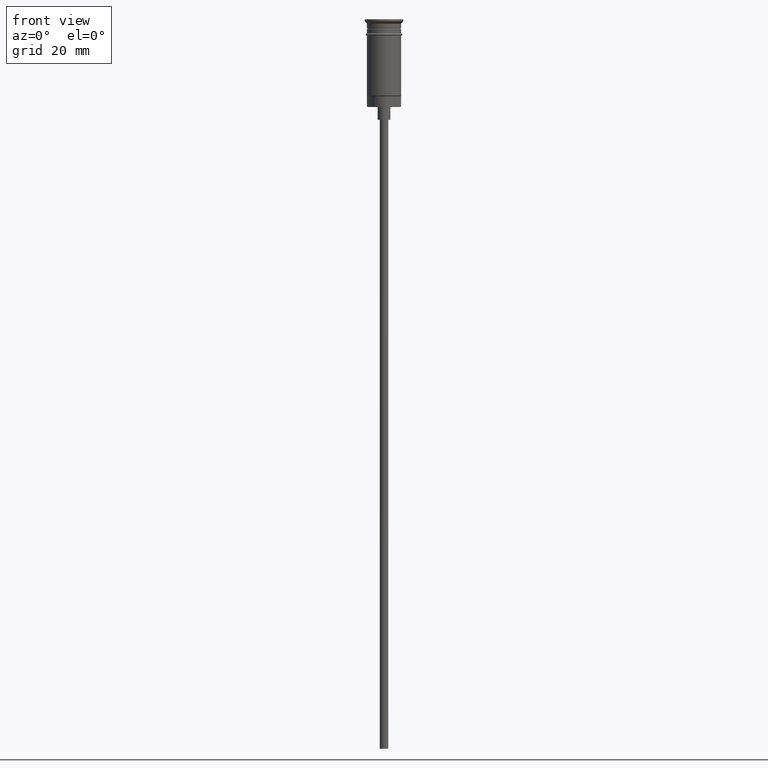
[diagram: clean part render]
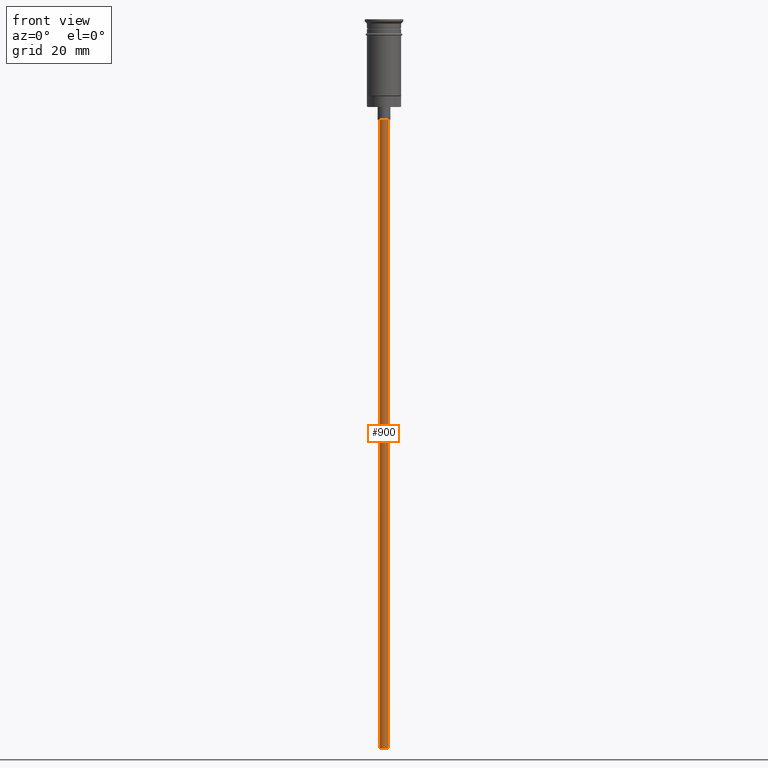
[diagram: same view with one face highlighted and labeled with its STEP entity id]
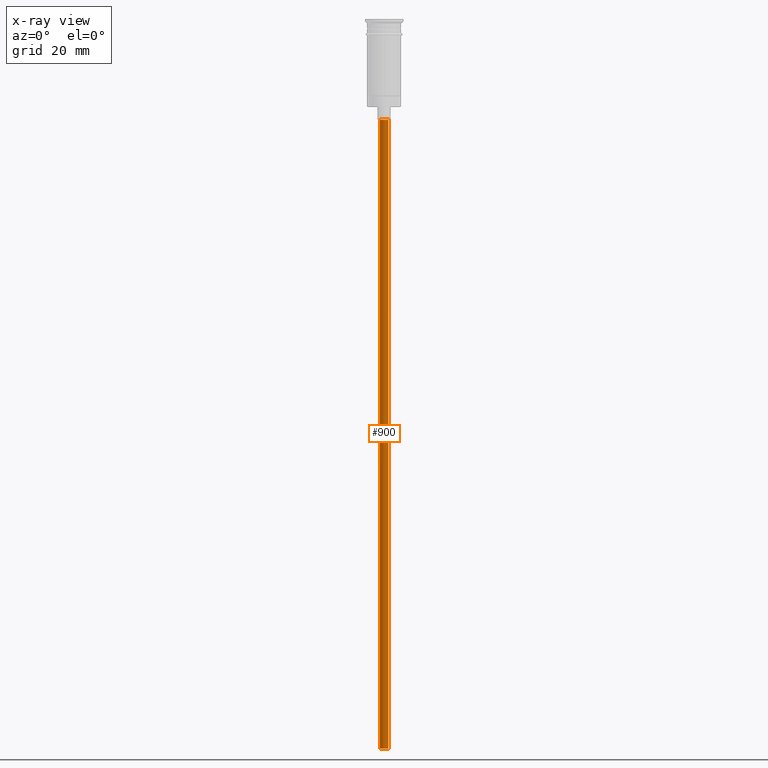
[diagram: x-ray of the same camera — body ghosted, the highlighted face saturated]
A machine part, front view. The second image highlights one B-rep face of the part: STEP entity #900.
The next image is the same camera in x-ray: the body ghosted, the highlighted face saturated — about 0% of this face is hidden behind the body in this view.
In plain terms, the highlighted cylindrical surface (edge-blend (fillet) strip) has radius 1 mm, axis along (-0, -0, 1).
Its self-contained STEP definition (entity closure, byte-faithful):
#11 = VERTEX_POINT ( 'NONE', #1183 ) ;
#14 = EDGE_LOOP ( 'NONE', ( #658, #1130, #1340, #1098 ) ) ;
#36 = DIRECTION ( 'NONE',  ( -1.000000000000000000, 0.000000000000000000, 0.000000000000000000 ) ) ;
#127 = CIRCLE ( 'NONE', #912, 0.9999999999999997780 ) ;
#170 = VERTEX_POINT ( 'NONE', #800 ) ;
#179 = DIRECTION ( 'NONE',  ( -0.000000000000000000, -0.000000000000000000, 1.000000000000000000 ) ) ;
#256 = CARTESIAN_POINT ( 'NONE',  ( -0.9999999999999997780, 1.224646799147352961E-16, -170.4999999999999716 ) ) ;
#290 = EDGE_CURVE ( 'NONE', #1411, #522, #506, .T. ) ;
#331 = CIRCLE ( 'NONE', #1243, 0.9999999999999997780 ) ;
#351 = DIRECTION ( 'NONE',  ( 1.000000000000000000, 0.000000000000000000, 0.000000000000000000 ) ) ;
#443 = AXIS2_PLACEMENT_3D ( 'NONE', #976, #1462, #351 ) ;
#481 = VECTOR ( 'NONE', #179, 1000.000000000000000 ) ;
#506 = LINE ( 'NONE', #894, #721 ) ;
#522 = VERTEX_POINT ( 'NONE', #1148 ) ;
#555 = DIRECTION ( 'NONE',  ( -1.000000000000000000, 0.000000000000000000, 0.000000000000000000 ) ) ;
#646 = DIRECTION ( 'NONE',  ( 0.000000000000000000, 0.000000000000000000, -1.000000000000000000 ) ) ;
#658 = ORIENTED_EDGE ( 'NONE', *, *, #290, .F. ) ;
#714 = EDGE_CURVE ( 'NONE', #170, #522, #127, .T. ) ;
#721 = VECTOR ( 'NONE', #1045, 1000.000000000000000 ) ;
#734 = EDGE_CURVE ( 'NONE', #11, #170, #787, .T. ) ;
#787 = LINE ( 'NONE', #1284, #481 ) ;
#797 = DIRECTION ( 'NONE',  ( 0.000000000000000000, 0.000000000000000000, -1.000000000000000000 ) ) ;
#800 = CARTESIAN_POINT ( 'NONE',  ( 0.9999999999999997780, 0.000000000000000000, -23.49999999999999645 ) ) ;
#834 = FACE_OUTER_BOUND ( 'NONE', #14, .T. ) ;
#894 = CARTESIAN_POINT ( 'NONE',  ( -0.9999999999999997780, 1.224646799147352961E-16, -170.4999999999999716 ) ) ;
#900 = ADVANCED_FACE ( 'NONE', ( #834 ), #1351, .T. ) ;
#912 = AXIS2_PLACEMENT_3D ( 'NONE', #1418, #797, #555 ) ;
#976 = CARTESIAN_POINT ( 'NONE',  ( 0.000000000000000000, 0.000000000000000000, -170.4999999999999716 ) ) ;
#1045 = DIRECTION ( 'NONE',  ( -0.000000000000000000, -0.000000000000000000, 1.000000000000000000 ) ) ;
#1098 = ORIENTED_EDGE ( 'NONE', *, *, #714, .T. ) ;
#1130 = ORIENTED_EDGE ( 'NONE', *, *, #1538, .F. ) ;
#1148 = CARTESIAN_POINT ( 'NONE',  ( -0.9999999999999997780, 1.224646799147352961E-16, -23.49999999999999645 ) ) ;
#1183 = CARTESIAN_POINT ( 'NONE',  ( 0.9999999999999997780, 0.000000000000000000, -170.4999999999999716 ) ) ;
#1243 = AXIS2_PLACEMENT_3D ( 'NONE', #1306, #646, #36 ) ;
#1284 = CARTESIAN_POINT ( 'NONE',  ( 0.9999999999999997780, 0.000000000000000000, -170.4999999999999716 ) ) ;
#1306 = CARTESIAN_POINT ( 'NONE',  ( 0.000000000000000000, 0.000000000000000000, -170.4999999999999716 ) ) ;
#1340 = ORIENTED_EDGE ( 'NONE', *, *, #734, .T. ) ;
#1351 = CYLINDRICAL_SURFACE ( 'NONE', #443, 0.9999999999999997780 ) ;
#1411 = VERTEX_POINT ( 'NONE', #256 ) ;
#1418 = CARTESIAN_POINT ( 'NONE',  ( 0.000000000000000000, 0.000000000000000000, -23.49999999999999645 ) ) ;
#1462 = DIRECTION ( 'NONE',  ( -0.000000000000000000, -0.000000000000000000, 1.000000000000000000 ) ) ;
#1538 = EDGE_CURVE ( 'NONE', #11, #1411, #331, .T. ) ;